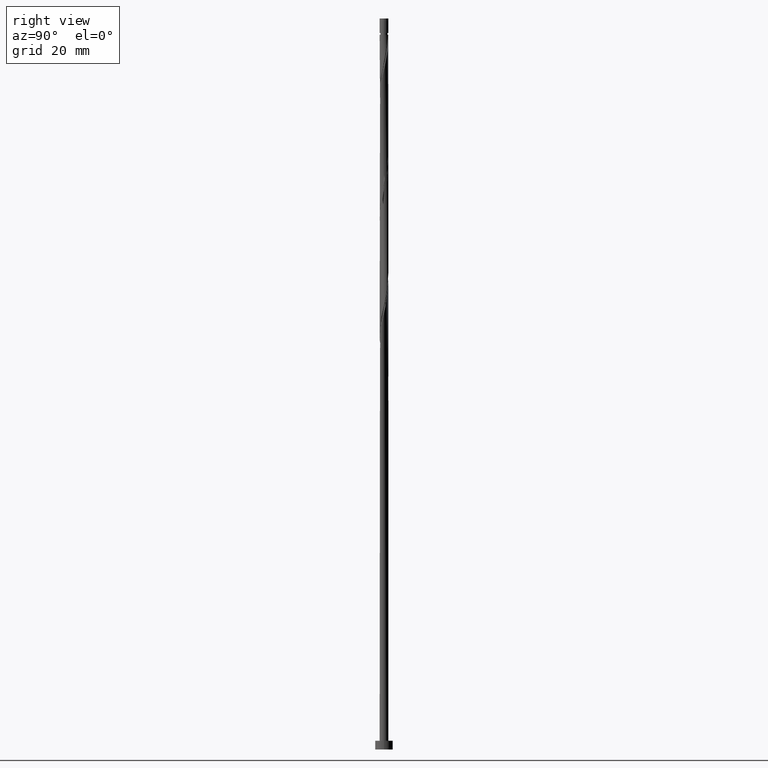
[diagram: clean part render]
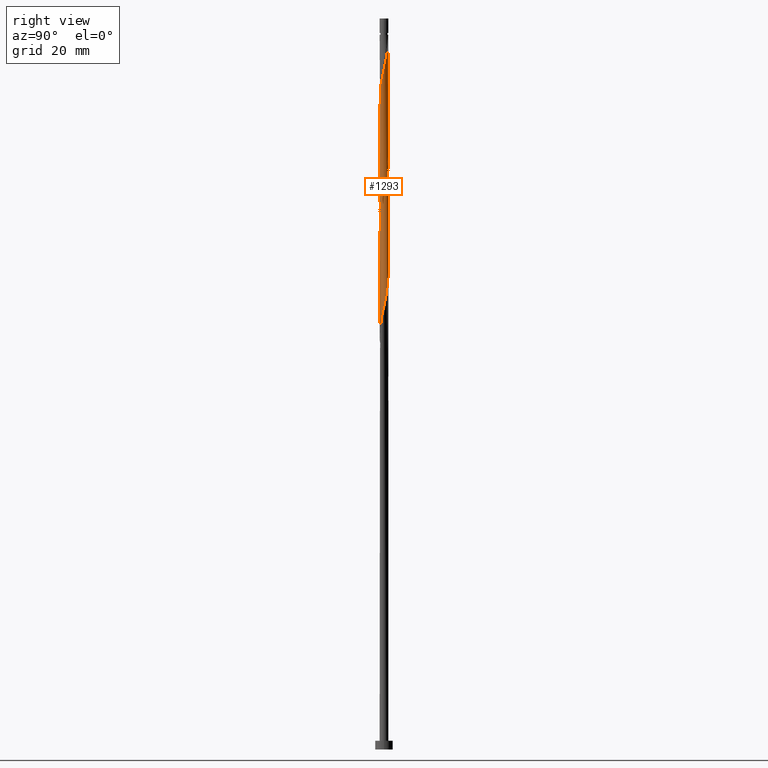
[diagram: same view with one face highlighted and labeled with its STEP entity id]
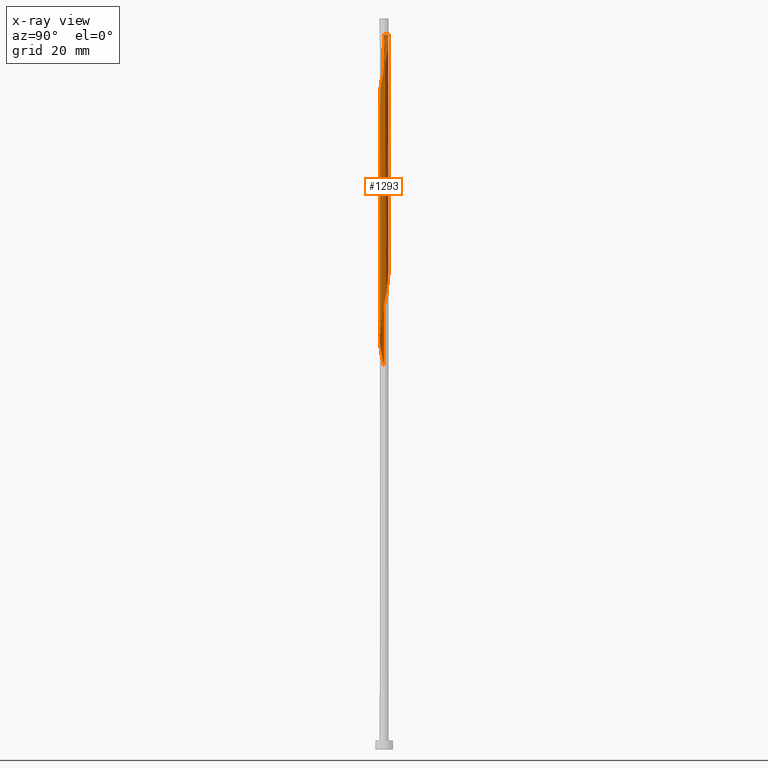
[diagram: x-ray of the same camera — body ghosted, the highlighted face saturated]
A machine part, right view. The second image highlights one B-rep face of the part: STEP entity #1293.
The next image is the same camera in x-ray: the body ghosted, the highlighted face saturated — about 0% of this face is hidden behind the body in this view.
In plain terms, the highlighted cylindrical surface (bore or boss wall) has radius 1.5 mm, axis along (-0, -0, -1).
Its self-contained STEP definition (entity closure, byte-faithful):
#2 = CARTESIAN_POINT ( 'NONE',  ( 1.198217944904827581, -0.9023711855484176647, 228.4035858823672243 ) ) ;
#12 = CARTESIAN_POINT ( 'NONE',  ( -1.040221096925479483, -1.080712759946489854, 217.1856371644184378 ) ) ;
#21 = CARTESIAN_POINT ( 'NONE',  ( 1.423302300154765998, 0.4735087775048722469, 234.8138422926236615 ) ) ;
#27 = CARTESIAN_POINT ( 'NONE',  ( -1.379351468801872205, -0.5893975954431092124, 133.8523038310850950 ) ) ;
#43 = ORIENTED_EDGE ( 'NONE', *, *, #1038, .T. ) ;
#57 = EDGE_LOOP ( 'NONE', ( #442, #43, #70, #255, #1226, #1067, #425, #1413 ) ) ;
#70 = ORIENTED_EDGE ( 'NONE', *, *, #951, .F. ) ;
#87 = CARTESIAN_POINT ( 'NONE',  ( 1.365807925316973703, -0.6463289655144691670, 190.7433294721107018 ) ) ;
#97 = CARTESIAN_POINT ( 'NONE',  ( -1.423302300154763333, 0.4735087775048729686, 170.7112781900594598 ) ) ;
#99 = CARTESIAN_POINT ( 'NONE',  ( -1.500000000000002665, -0.05965969550515165531, 212.1154759477493315 ) ) ;
#113 = CARTESIAN_POINT ( 'NONE',  ( 1.500000000000000222, -0.05965969550515079489, 193.4096445349337898 ) ) ;
#117 = CARTESIAN_POINT ( 'NONE',  ( -1.499999999999999334, 0.05965969550515983627, 214.2429778682671326 ) ) ;
#120 = CARTESIAN_POINT ( 'NONE',  ( 0.5937265303270490291, -1.389482359624426788, 185.9356371644183810 ) ) ;
#123 = CARTESIAN_POINT ( 'NONE',  ( 0.2984962311319879213, 1.469999999999999529, 202.7625602413415038 ) ) ;
#137 = CARTESIAN_POINT ( 'NONE',  ( 1.480322099070742858, -0.2421703594637400481, 231.6087140874954002 ) ) ;
#146 = CARTESIAN_POINT ( 'NONE',  ( 1.040221096925479927, 1.080712759946489854, 238.0189704977518375 ) ) ;
#155 = CARTESIAN_POINT ( 'NONE',  ( -0.4188377764137488635, -1.440338473084987303, 220.3907653695466990 ) ) ;
#161 = CARTESIAN_POINT ( 'NONE',  ( -1.499999999999999778, -1.794712623994346953E-15, 131.1738154505667637 ) ) ;
#207 = AXIS2_PLACEMENT_3D ( 'NONE', #1505, #1408, #209 ) ;
#209 = DIRECTION ( 'NONE',  ( -1.000000000000000000, 0.000000000000000000, 0.000000000000000000 ) ) ;
#215 = CARTESIAN_POINT ( 'NONE',  ( 1.040221096925477262, -1.080712759946488521, 188.3394833182645982 ) ) ;
#222 = CARTESIAN_POINT ( 'NONE',  ( -1.040221096925477262, 1.080712759946488521, 167.5061499849312270 ) ) ;
#230 = CARTESIAN_POINT ( 'NONE',  ( 1.495261789693514531, -0.1191309375542241311, 193.1471756259568906 ) ) ;
#237 = CARTESIAN_POINT ( 'NONE',  ( 1.480322099070740416, 0.2421703594637390211, 153.0830730618544067 ) ) ;
#244 = CARTESIAN_POINT ( 'NONE',  ( 1.268625654424377913, -0.8003680084413155038, 148.2753807541620574 ) ) ;
#246 = CARTESIAN_POINT ( 'NONE',  ( 1.500000000000000000, 1.203953051929541165E-15, 193.6738154505667922 ) ) ;
#255 = ORIENTED_EDGE ( 'NONE', *, *, #949, .T. ) ;
#261 = CARTESIAN_POINT ( 'NONE',  ( -1.198217944904826915, -0.9023711855484154443, 135.4548679336492114 ) ) ;
#264 = CARTESIAN_POINT ( 'NONE',  ( -0.5937265303270506944, -1.389482359624428121, 219.5894833182646266 ) ) ;
#279 = CARTESIAN_POINT ( 'NONE',  ( 0.4188377764137477532, -1.440338473084985527, 143.4676884464697366 ) ) ;
#281 = CARTESIAN_POINT ( 'NONE',  ( 0.1200059157952639288, -1.506244004368417988, 222.7946115233927742 ) ) ;
#289 = CARTESIAN_POINT ( 'NONE',  ( 1.268625654424380134, 0.8003680084413162810, 236.4164063951877210 ) ) ;
#293 = LINE ( 'NONE', #1498, #668 ) ;
#329 = VERTEX_POINT ( 'NONE', #764 ) ;
#348 = CARTESIAN_POINT ( 'NONE',  ( -1.307785643856737456, -0.7568811863455700006, 176.3202525490338246 ) ) ;
#355 = CARTESIAN_POINT ( 'NONE',  ( -0.4769865464687111367, -1.433755995631583069, 181.1279448567261170 ) ) ;
#357 = VERTEX_POINT ( 'NONE', #1656 ) ;
#361 = CARTESIAN_POINT ( 'NONE',  ( -0.4188377764137478643, 1.440338473084985527, 164.3010217798031363 ) ) ;
#368 = CARTESIAN_POINT ( 'NONE',  ( 1.198217944904827137, 0.9023711855484152222, 156.2882012669825826 ) ) ;
#377 = CARTESIAN_POINT ( 'NONE',  ( 0.8062464528369474026, 1.277943299919640285, 158.6920474208286862 ) ) ;
#380 = LINE ( 'NONE', #648, #1089 ) ;
#395 = DIRECTION ( 'NONE',  ( -0.000000000000000000, -0.000000000000000000, -1.000000000000000000 ) ) ;
#398 = CARTESIAN_POINT ( 'NONE',  ( -0.6416164996528289644, -1.355849647775611899, 138.6599961387774442 ) ) ;
#425 = ORIENTED_EDGE ( 'NONE', *, *, #1183, .T. ) ;
#438 = FACE_OUTER_BOUND ( 'NONE', #57, .T. ) ;
#442 = ORIENTED_EDGE ( 'NONE', *, *, #454, .F. ) ;
#454 = EDGE_CURVE ( 'NONE', #882, #995, #293, .T. ) ;
#491 = CARTESIAN_POINT ( 'NONE',  ( -0.1200059157952649697, -1.506244004368415768, 182.7305089592902334 ) ) ;
#493 = CARTESIAN_POINT ( 'NONE',  ( -0.5937265303270490291, 1.389482359624426566, 206.7689704977517238 ) ) ;
#498 = CARTESIAN_POINT ( 'NONE',  ( -0.5937265303270490291, 1.389482359624426566, 165.1023038310851518 ) ) ;
#506 = CARTESIAN_POINT ( 'NONE',  ( -0.9474483493949313884, -1.162902242335450698, 178.7240987028800134 ) ) ;
#509 = CARTESIAN_POINT ( 'NONE',  ( -1.171443383531782345, 0.9544070513681616186, 209.9740987028799850 ) ) ;
#516 = CARTESIAN_POINT ( 'NONE',  ( 0.06197155335259039999, -1.498719295456980127, 183.5317910105722774 ) ) ;
#524 = CARTESIAN_POINT ( 'NONE',  ( -1.509726904394475433, -0.06242671438683002061, 173.1151243439055634 ) ) ;
#537 = CARTESIAN_POINT ( 'NONE',  ( 0.2439490225004457558, -1.491194586545544487, 142.6664063951876642 ) ) ;
#539 = CARTESIAN_POINT ( 'NONE',  ( 1.171443383531785010, 0.9544070513681620627, 237.2176884464697650 ) ) ;
#546 = CARTESIAN_POINT ( 'NONE',  ( 0.8062464528369475136, -1.277943299919642950, 225.9997397285210923 ) ) ;
#551 = CARTESIAN_POINT ( 'NONE',  ( -0.2984962311319877548, -1.469999999999999529, 140.2625602413415322 ) ) ;
#554 = CARTESIAN_POINT ( 'NONE',  ( 1.365807925316976146, 0.6463289655144695001, 235.6151243439056771 ) ) ;
#564 = CIRCLE ( 'NONE', #939, 1.499999999999982681 ) ;
#594 = CARTESIAN_POINT ( 'NONE',  ( 1.500000000000000222, 1.836970198721030181E-16, 250.0000000000000000 ) ) ;
#605 = LINE ( 'NONE', #594, #1262 ) ;
#621 = CARTESIAN_POINT ( 'NONE',  ( 1.480796674992553186, -0.3006885894952764926, 192.3458935746748466 ) ) ;
#623 = DIRECTION ( 'NONE',  ( -0.000000000000000000, -0.000000000000000000, -1.000000000000000000 ) ) ;
#629 = CARTESIAN_POINT ( 'NONE',  ( -1.268625654424377913, 0.8003680084413155038, 169.1087140874953434 ) ) ;
#632 = CARTESIAN_POINT ( 'NONE',  ( -1.495261789693516530, -0.1191309375542227433, 212.3779448567261738 ) ) ;
#638 = CARTESIAN_POINT ( 'NONE',  ( -0.2984962311319877548, -1.469999999999999529, 181.9292269080081610 ) ) ;
#640 = CARTESIAN_POINT ( 'NONE',  ( 0.8062464528369474026, 1.277943299919640285, 200.3587140874953434 ) ) ;
#645 = CARTESIAN_POINT ( 'NONE',  ( 1.088650245952915485, 1.047861184751261110, 157.0894833182645982 ) ) ;
#648 = CARTESIAN_POINT ( 'NONE',  ( -1.500000000000000222, 0.000000000000000000, 250.0000000000000000 ) ) ;
#655 = CARTESIAN_POINT ( 'NONE',  ( -0.8062464528369471806, -1.277943299919640285, 179.5253807541620574 ) ) ;
#663 = CARTESIAN_POINT ( 'NONE',  ( 0.000000000000000000, 0.000000000000000000, 244.4292269080082178 ) ) ;
#668 = VECTOR ( 'NONE', #701, 1000.000000000000000 ) ;
#669 = CARTESIAN_POINT ( 'NONE',  ( 1.495261789693516530, 0.1191309375542222576, 233.2112781900595166 ) ) ;
#682 = EDGE_CURVE ( 'NONE', #995, #1098, #1066, .T. ) ;
#685 = CARTESIAN_POINT ( 'NONE',  ( 0.06197155335259257880, 1.498719295456981904, 242.8266628054441583 ) ) ;
#691 = CARTESIAN_POINT ( 'NONE',  ( 0.5937265303270506944, 1.389482359624428121, 240.4228166515979410 ) ) ;
#701 = DIRECTION ( 'NONE',  ( -0.000000000000000000, -0.000000000000000000, -1.000000000000000000 ) ) ;
#718 = DIRECTION ( 'NONE',  ( -1.000000000000000000, 0.000000000000000000, 0.000000000000000000 ) ) ;
#746 = CARTESIAN_POINT ( 'NONE',  ( -1.495261789693514087, 0.1191309375542232707, 172.3138422926235478 ) ) ;
#753 = CARTESIAN_POINT ( 'NONE',  ( -1.450917293747005399, -0.4219140045406479245, 174.7176884464697082 ) ) ;
#755 = CARTESIAN_POINT ( 'NONE',  ( -1.499999999999982681, 0.000000000000000000, 244.4292269080082178 ) ) ;
#761 = CARTESIAN_POINT ( 'NONE',  ( -0.6416164996528289644, -1.355849647775611899, 180.3266628054441014 ) ) ;
#764 = CARTESIAN_POINT ( 'NONE',  ( -0.2984962311320361605, 1.470000000000403428, 244.4292269080083031 ) ) ;
#765 = CARTESIAN_POINT ( 'NONE',  ( -0.06197155335259088571, 1.498719295456980127, 204.3651243439056486 ) ) ;
#770 = CARTESIAN_POINT ( 'NONE',  ( -0.06197155335259088571, 1.498719295456980127, 162.6984576772390199 ) ) ;
#777 = CARTESIAN_POINT ( 'NONE',  ( 1.171443383531781901, -0.9544070513681621737, 147.4740987028799282 ) ) ;
#779 = CARTESIAN_POINT ( 'NONE',  ( 0.4769865464687113032, 1.433755995631583069, 201.9612781900593461 ) ) ;
#786 = CARTESIAN_POINT ( 'NONE',  ( -1.500000000000000000, 9.945699124635338429E-16, 214.5071487839000497 ) ) ;
#789 = CARTESIAN_POINT ( 'NONE',  ( -0.8062464528369471806, -1.277943299919640285, 137.8587140874953434 ) ) ;
#793 = CARTESIAN_POINT ( 'NONE',  ( 0.2984962311319876993, -1.470000000000002416, 223.5958935746748182 ) ) ;
#801 = CARTESIAN_POINT ( 'NONE',  ( -0.2984962311320360495, 1.470000000000403428, 244.4292269080083031 ) ) ;
#809 = CARTESIAN_POINT ( 'NONE',  ( 0.6416164996528290754, -1.355849647775614786, 225.1984576772389914 ) ) ;
#815 = CARTESIAN_POINT ( 'NONE',  ( 0.2439490225004475321, 1.491194586545546708, 242.0253807541620859 ) ) ;
#845 = CARTESIAN_POINT ( 'NONE',  ( -1.500000000000002220, -4.112883096653684897E-16, 211.8513050321163291 ) ) ;
#859 = VERTEX_POINT ( 'NONE', #1185 ) ;
#871 = CARTESIAN_POINT ( 'NONE',  ( -1.198217944904826915, -0.9023711855484154443, 177.1215346003158686 ) ) ;
#881 = CARTESIAN_POINT ( 'NONE',  ( -1.500000000000002220, -4.112883096653684897E-16, 211.8513050321163291 ) ) ;
#882 = VERTEX_POINT ( 'NONE', #755 ) ;
#887 = CARTESIAN_POINT ( 'NONE',  ( 0.1200059157952646366, 1.506244004368415768, 161.8971756259568906 ) ) ;
#896 = CARTESIAN_POINT ( 'NONE',  ( 1.379351468801872205, 0.5893975954431089903, 154.6856371644184662 ) ) ;
#898 = CARTESIAN_POINT ( 'NONE',  ( 1.379351468801872205, 0.5893975954431089903, 196.3523038310851518 ) ) ;
#903 = CARTESIAN_POINT ( 'NONE',  ( 1.423302300154763333, -0.4735087775048735237, 149.8779448567261454 ) ) ;
#905 = CARTESIAN_POINT ( 'NONE',  ( -1.480796674992555850, -0.3006885894952763261, 213.1792269080081610 ) ) ;
#909 = CARTESIAN_POINT ( 'NONE',  ( 0.7513626703231104376, -1.298250414074620496, 145.0702525490338246 ) ) ;
#911 = CARTESIAN_POINT ( 'NONE',  ( 1.198217944904827137, 0.9023711855484152222, 197.9548679336492114 ) ) ;
#920 = CARTESIAN_POINT ( 'NONE',  ( -0.1200059157952680089, 1.506244004368418654, 243.6279448567261738 ) ) ;
#927 = CARTESIAN_POINT ( 'NONE',  ( 1.509726904394477653, -0.06242671438683039531, 232.4099961387774442 ) ) ;
#932 = CARTESIAN_POINT ( 'NONE',  ( 1.040221096925477262, -1.080712759946488521, 146.6728166515979694 ) ) ;
#934 = CARTESIAN_POINT ( 'NONE',  ( 0.7513626703231125470, 1.298250414074622272, 239.6215346003158402 ) ) ;
#939 = AXIS2_PLACEMENT_3D ( 'NONE', #663, #395, #718 ) ;
#944 = CARTESIAN_POINT ( 'NONE',  ( 1.307785643856739455, -0.7568811863455723321, 229.2048679336491830 ) ) ;
#949 = EDGE_CURVE ( 'NONE', #1360, #357, #380, .T. ) ;
#951 = EDGE_CURVE ( 'NONE', #1360, #329, #1309, .T. ) ;
#975 = DIRECTION ( 'NONE',  ( -0.000000000000000000, -0.000000000000000000, -1.000000000000000000 ) ) ;
#988 = CYLINDRICAL_SURFACE ( 'NONE', #207, 1.500000000000000222 ) ;
#995 = VERTEX_POINT ( 'NONE', #786 ) ;
#1015 = CARTESIAN_POINT ( 'NONE',  ( -1.365807925316973703, 0.6463289655144691670, 169.9099961387774158 ) ) ;
#1022 = CARTESIAN_POINT ( 'NONE',  ( -1.379351468801872205, -0.5893975954431092124, 175.5189704977518090 ) ) ;
#1025 = CARTESIAN_POINT ( 'NONE',  ( 0.9474483493949318325, 1.162902242335450254, 199.5574320362132994 ) ) ;
#1030 = CARTESIAN_POINT ( 'NONE',  ( 0.6416164996528299636, 1.355849647775611677, 159.4933294721107586 ) ) ;
#1032 = CARTESIAN_POINT ( 'NONE',  ( 1.307785643856737456, 0.7568811863455692235, 197.1535858823671674 ) ) ;
#1038 = EDGE_CURVE ( 'NONE', #882, #329, #564, .T. ) ;
#1040 = CARTESIAN_POINT ( 'NONE',  ( 1.495261789693514531, -0.1191309375542241311, 151.4805089592902902 ) ) ;
#1042 = CARTESIAN_POINT ( 'NONE',  ( -1.423302300154763333, 0.4735087775048729686, 212.3779448567261738 ) ) ;
#1045 = CARTESIAN_POINT ( 'NONE',  ( -1.480322099070740416, -0.2421703594637387436, 132.2497397285210354 ) ) ;
#1053 = CARTESIAN_POINT ( 'NONE',  ( -0.4769865464687111367, -1.433755995631583069, 139.4612781900594314 ) ) ;
#1060 = CARTESIAN_POINT ( 'NONE',  ( -1.088650245952915263, -1.047861184751261110, 136.2561499849312554 ) ) ;
#1063 = CARTESIAN_POINT ( 'NONE',  ( 0.9089988103191743996, 1.207018468524815757, 238.8202525490338246 ) ) ;
#1066 =( BOUNDED_CURVE ( )  B_SPLINE_CURVE ( 2, ( #1156, #117, #1710, #1697, #1042, #1682, #1171, #509, #1689, #1451, #1307, #493, #1178, #1704, #765, #1578, #123, #779, #1291, #640, #1025, #1162, #911, #1032, #898, #1569, #1428, #1299, #246 ),
 .UNSPECIFIED., .F., .T. ) 
 B_SPLINE_CURVE_WITH_KNOTS ( ( 3, 2, 2, 2, 2, 2, 2, 2, 2, 2, 2, 2, 2, 2, 3 ),
 ( 0.4295271625973836049, 0.4326923076923077094, 0.4423076923076922906, 0.4519230769230769273, 0.4615384615384615641, 0.4711538461538461453, 0.4807692307692307820, 0.4903846153846153633, 0.5000000000000000000, 0.5096153846153845812, 0.5192307692307692735, 0.5288461538461538547, 0.5384615384615384359, 0.5480769230769231282, 0.5545271625973831053 ),
 .UNSPECIFIED. ) 
 CURVE ( )  GEOMETRIC_REPRESENTATION_ITEM ( )  RATIONAL_B_SPLINE_CURVE ( ( 0.9061636035683111601, 0.9069090390690999204, 0.9090909090909563561, 0.9024626128164596750, 0.9090909090909563561, 0.9024626128164596750, 0.9090909090909563561, 0.9024626128164596750, 0.9090909090909563561, 0.9024626128164596750, 0.9090909090909563561, 0.9024626128164596750, 0.9090909090909563561, 0.9024626128164596750, 0.9090909090909563561, 0.9024626128164596750, 0.9090909090909563561, 0.9024626128164596750, 0.9090909090909563561, 0.9024626128164596750, 0.9090909090909563561, 0.9024626128164596750, 0.9090909090909563561, 0.9024626128164596750, 0.9090909090909563561, 0.9024626128164596750, 0.9090909090909563561, 0.9046444828383164438, 0.9061636035683110491 ) ) 
 REPRESENTATION_ITEM ( '' )  );
#1067 = ORIENTED_EDGE ( 'NONE', *, *, #1183, .F. ) ;
#1070 = CARTESIAN_POINT ( 'NONE',  ( 0.9089988103191715130, -1.207018468524815535, 145.8715346003158402 ) ) ;
#1082 = CARTESIAN_POINT ( 'NONE',  ( -0.06197155335259172532, -1.498719295456981904, 221.9933294721108155 ) ) ;
#1089 = VECTOR ( 'NONE', #623, 1000.000000000000000 ) ;
#1092 = CARTESIAN_POINT ( 'NONE',  ( -0.9089988103191739555, -1.207018468524816424, 217.9869192157005102 ) ) ;
#1098 = VERTEX_POINT ( 'NONE', #1672 ) ;
#1153 = CARTESIAN_POINT ( 'NONE',  ( 0.4188377764137477532, -1.440338473084985527, 185.1343551131363938 ) ) ;
#1156 = CARTESIAN_POINT ( 'NONE',  ( -1.500000000000000000, 9.945699124635338429E-16, 214.5071487839000497 ) ) ;
#1160 = CARTESIAN_POINT ( 'NONE',  ( -0.9089988103191720681, 1.207018468524815313, 166.7048679336491830 ) ) ;
#1162 = CARTESIAN_POINT ( 'NONE',  ( 1.088650245952915485, 1.047861184751261110, 198.7561499849312270 ) ) ;
#1168 = CARTESIAN_POINT ( 'NONE',  ( -0.2439490225004463386, 1.491194586545544043, 163.4997397285210354 ) ) ;
#1171 = CARTESIAN_POINT ( 'NONE',  ( -1.268625654424377913, 0.8003680084413155038, 210.7753807541620859 ) ) ;
#1175 = CARTESIAN_POINT ( 'NONE',  ( 1.509726904394475433, 0.06242671438682949325, 152.2817910105722206 ) ) ;
#1178 = CARTESIAN_POINT ( 'NONE',  ( -0.4188377764137478643, 1.440338473084985527, 205.9676884464697082 ) ) ;
#1182 = CARTESIAN_POINT ( 'NONE',  ( -1.088650245952915263, -1.047861184751261110, 177.9228166515978842 ) ) ;
#1183 = EDGE_CURVE ( 'NONE', #859, #1098, #605, .T. ) ;
#1185 = CARTESIAN_POINT ( 'NONE',  ( 1.500000000000000222, 1.836970198721030181E-16, 244.4292269080083031 ) ) ;
#1191 = CARTESIAN_POINT ( 'NONE',  ( 1.450917293747007619, -0.4219140045406496453, 230.8074320362133278 ) ) ;
#1198 = CARTESIAN_POINT ( 'NONE',  ( 1.379351468801873315, -0.5893975954431104336, 230.0061499849312838 ) ) ;
#1208 = CARTESIAN_POINT ( 'NONE',  ( 1.480796674992555850, 0.3006885894952761595, 234.0125602413415038 ) ) ;
#1216 = CARTESIAN_POINT ( 'NONE',  ( 0.4769865464687106371, -1.433755995631585511, 224.3971756259569190 ) ) ;
#1222 = CARTESIAN_POINT ( 'NONE',  ( 0.4188377764137496961, 1.440338473084987303, 241.2240987028800419 ) ) ;
#1226 = ORIENTED_EDGE ( 'NONE', *, *, #1550, .F. ) ;
#1251 =( BOUNDED_CURVE ( )  B_SPLINE_CURVE ( 2, ( #1552, #113, #230, #621, #1425, #87, #1417, #1288, #215, #1559, #1545, #120, #1153, #1680, #516, #491, #638, #355, #761, #655, #506, #1182, #871, #348, #1022, #753, #1708, #524, #746, #1281, #97, #1015, #629, #1701, #222, #1160, #1687, #498, #361, #1168, #770, #887, #1695, #1434, #1030, #377, #1566, #645, #368, #1313, #896, #1304, #237, #1175, #1040, #1576, #903, #1449, #244, #777, #932, #1070, #909, #1477, #279, #537, #1346, #1617, #551, #1053, #398, #789, #1583, #1060, #261, #1353, #27, #1454, #1045, #1327, #161 ),
 .UNSPECIFIED., .F., .T. ) 
 B_SPLINE_CURVE_WITH_KNOTS ( ( 3, 2, 2, 2, 2, 2, 2, 2, 2, 2, 2, 2, 2, 2, 2, 2, 2, 2, 2, 2, 2, 2, 2, 2, 2, 2, 2, 2, 2, 2, 2, 2, 2, 2, 2, 2, 2, 2, 2, 2, 3 ),
 ( 0.5545271625973831053, 0.5576923076923077094, 0.5673076923076922906, 0.5769230769230768718, 0.5865384615384615641, 0.5961538461538461453, 0.6057692307692307265, 0.6153846153846154188, 0.6250000000000000000, 0.6346153846153845812, 0.6442307692307692735, 0.6538461538461538547, 0.6634615384615384359, 0.6730769230769231282, 0.6826923076923077094, 0.6923076923076922906, 0.7019230769230768718, 0.7115384615384615641, 0.7211538461538461453, 0.7307692307692307265, 0.7403846153846154188, 0.7500000000000000000, 0.7596153846153845812, 0.7692307692307692735, 0.7788461538461538547, 0.7884615384615384359, 0.7980769230769231282, 0.8076923076923077094, 0.8173076923076922906, 0.8269230769230768718, 0.8365384615384615641, 0.8461538461538461453, 0.8557692307692307265, 0.8653846153846154188, 0.8750000000000000000, 0.8846153846153845812, 0.8942307692307692735, 0.9038461538461538547, 0.9134615384615384359, 0.9230769230769231282, 0.9295271625973829943 ),
 .UNSPECIFIED. ) 
 CURVE ( )  GEOMETRIC_REPRESENTATION_ITEM ( )  RATIONAL_B_SPLINE_CURVE ( ( 0.9061636035683110491, 0.9069090390690996983, 0.9090909090909563561, 0.9024626128164596750, 0.9090909090909563561, 0.9024626128164596750, 0.9090909090909563561, 0.9024626128164596750, 0.9090909090909563561, 0.9024626128164596750, 0.9090909090909563561, 0.9024626128164596750, 0.9090909090909563561, 0.9024626128164596750, 0.9090909090909563561, 0.9024626128164596750, 0.9090909090909563561, 0.9024626128164596750, 0.9090909090909563561, 0.9024626128164596750, 0.9090909090909563561, 0.9024626128164596750, 0.9090909090909563561, 0.9024626128164596750, 0.9090909090909563561, 0.9024626128164596750, 0.9090909090909563561, 0.9024626128164596750, 0.9090909090909563561, 0.9024626128164596750, 0.9090909090909563561, 0.9024626128164596750, 0.9090909090909563561, 0.9024626128164596750, 0.9090909090909563561, 0.9024626128164596750, 0.9090909090909563561, 0.9024626128164596750, 0.9090909090909563561, 0.9024626128164596750, 0.9090909090909563561, 0.9024626128164596750, 0.9090909090909563561, 0.9024626128164596750, 0.9090909090909563561, 0.9024626128164596750, 0.9090909090909563561, 0.9024626128164596750, 0.9090909090909563561, 0.9024626128164596750, 0.9090909090909563561, 0.9024626128164596750, 0.9090909090909563561, 0.9024626128164596750, 0.9090909090909563561, 0.9024626128164596750, 0.9090909090909563561, 0.9024626128164596750, 0.9090909090909563561, 0.9024626128164596750, 0.9090909090909563561, 0.9024626128164596750, 0.9090909090909563561, 0.9024626128164596750, 0.9090909090909563561, 0.9024626128164596750, 0.9090909090909563561, 0.9024626128164596750, 0.9090909090909563561, 0.9024626128164596750, 0.9090909090909563561, 0.9024626128164596750, 0.9090909090909563561, 0.9024626128164596750, 0.9090909090909563561, 0.9024626128164596750, 0.9090909090909563561, 0.9024626128164596750, 0.9090909090909563561, 0.9046444828383165548, 0.9061636035683109380 ) ) 
 REPRESENTATION_ITEM ( '' )  );
#1262 = VECTOR ( 'NONE', #975, 1000.000000000000000 ) ;
#1281 = CARTESIAN_POINT ( 'NONE',  ( -1.480796674992553186, 0.3006885894952762706, 171.5125602413415606 ) ) ;
#1288 = CARTESIAN_POINT ( 'NONE',  ( 1.171443383531781901, -0.9544070513681621737, 189.1407653695466422 ) ) ;
#1291 = CARTESIAN_POINT ( 'NONE',  ( 0.6416164996528299636, 1.355849647775611677, 201.1599961387774158 ) ) ;
#1293 = ADVANCED_FACE ( 'NONE', ( #438 ), #988, .T. ) ;
#1299 = CARTESIAN_POINT ( 'NONE',  ( 1.499999999999999334, 0.1218846578055703817, 194.2135161879151042 ) ) ;
#1304 = CARTESIAN_POINT ( 'NONE',  ( 1.450917293747005621, 0.4219140045406470918, 153.8843551131364222 ) ) ;
#1307 = CARTESIAN_POINT ( 'NONE',  ( -0.7513626703231105486, 1.298250414074620496, 207.5702525490338530 ) ) ;
#1309 =( BOUNDED_CURVE ( )  B_SPLINE_CURVE ( 2, ( #881, #99, #632, #905, #1487, #1463, #1608, #1329, #12, #1092, #1480, #264, #155, #1339, #1082, #281, #793, #1216, #809, #546, #1600, #1626, #2, #944, #1198, #1191, #137, #927, #669, #1208, #21, #554, #289, #539, #146, #1063, #934, #691, #1222, #815, #685, #920, #801 ),
 .UNSPECIFIED., .F., .T. ) 
 B_SPLINE_CURVE_WITH_KNOTS ( ( 3, 2, 2, 2, 2, 2, 2, 2, 2, 2, 2, 2, 2, 2, 2, 2, 2, 2, 2, 2, 2, 3 ),
 ( 0.5545271625973832164, 0.5576923076923077094, 0.5673076923076922906, 0.5769230769230768718, 0.5865384615384615641, 0.5961538461538461453, 0.6057692307692309486, 0.6153846153846155298, 0.6250000000000001110, 0.6346153846153846922, 0.6442307692307692735, 0.6538461538461539657, 0.6634615384615385469, 0.6730769230769232392, 0.6826923076923078204, 0.6923076923076925127, 0.7019230769230770939, 0.7115384615384616751, 0.7211538461538463674, 0.7307692307692310596, 0.7403846153846156408, 0.7500000000000002220 ),
 .UNSPECIFIED. ) 
 CURVE ( )  GEOMETRIC_REPRESENTATION_ITEM ( )  RATIONAL_B_SPLINE_CURVE ( ( 0.9061636035683167112, 0.9069090390691052495, 0.9090909090909620183, 0.9024626128164653371, 0.9090909090909620183, 0.9024626128164653371, 0.9090909090909620183, 0.9024626128164653371, 0.9090909090909620183, 0.9024626128164653371, 0.9090909090909620183, 0.9024626128164653371, 0.9090909090909620183, 0.9024626128164653371, 0.9090909090909620183, 0.9024626128164653371, 0.9090909090909620183, 0.9024626128164653371, 0.9090909090909620183, 0.9024626128164653371, 0.9090909090909620183, 0.9024626128164653371, 0.9090909090909620183, 0.9024626128164653371, 0.9090909090909620183, 0.9024626128164653371, 0.9090909090909620183, 0.9024626128164653371, 0.9090909090909620183, 0.9024626128164653371, 0.9090909090909620183, 0.9024626128164653371, 0.9090909090909620183, 0.9024626128164653371, 0.9090909090909620183, 0.9024626128164653371, 0.9090909090909620183, 0.9024626128164653371, 0.9090909090909620183, 0.9024626128164653371, 0.9090909090909620183, 0.9024626128164652261, 0.9090909090909621293 ) ) 
 REPRESENTATION_ITEM ( '' )  );
#1313 = CARTESIAN_POINT ( 'NONE',  ( 1.307785643856737456, 0.7568811863455692235, 155.4869192157004534 ) ) ;
#1327 = CARTESIAN_POINT ( 'NONE',  ( -1.499999999999998890, -0.1218846578055727131, 131.7135161879151042 ) ) ;
#1329 = CARTESIAN_POINT ( 'NONE',  ( -1.171443383531784788, -0.9544070513681625068, 216.3843551131363938 ) ) ;
#1339 = CARTESIAN_POINT ( 'NONE',  ( -0.2439490225004473933, -1.491194586545546708, 221.1920474208287146 ) ) ;
#1346 = CARTESIAN_POINT ( 'NONE',  ( 0.06197155335259039999, -1.498719295456980127, 141.8651243439056771 ) ) ;
#1353 = CARTESIAN_POINT ( 'NONE',  ( -1.307785643856737456, -0.7568811863455700006, 134.6535858823671390 ) ) ;
#1360 = VERTEX_POINT ( 'NONE', #845 ) ;
#1408 = DIRECTION ( 'NONE',  ( -0.000000000000000000, -0.000000000000000000, -1.000000000000000000 ) ) ;
#1413 = ORIENTED_EDGE ( 'NONE', *, *, #682, .F. ) ;
#1417 = CARTESIAN_POINT ( 'NONE',  ( 1.268625654424377913, -0.8003680084413155038, 189.9420474208287430 ) ) ;
#1425 = CARTESIAN_POINT ( 'NONE',  ( 1.423302300154763333, -0.4735087775048735237, 191.5446115233928026 ) ) ;
#1428 = CARTESIAN_POINT ( 'NONE',  ( 1.480322099070740416, 0.2421703594637390211, 194.7497397285210354 ) ) ;
#1434 = CARTESIAN_POINT ( 'NONE',  ( 0.4769865464687113032, 1.433755995631583069, 160.2946115233928026 ) ) ;
#1449 = CARTESIAN_POINT ( 'NONE',  ( 1.365807925316973703, -0.6463289655144691670, 149.0766628054441014 ) ) ;
#1451 = CARTESIAN_POINT ( 'NONE',  ( -0.9089988103191720681, 1.207018468524815313, 208.3715346003158686 ) ) ;
#1454 = CARTESIAN_POINT ( 'NONE',  ( -1.450917293747005399, -0.4219140045406479245, 133.0510217798030510 ) ) ;
#1463 = CARTESIAN_POINT ( 'NONE',  ( -1.365807925316976146, -0.6463289655144700552, 214.7817910105723342 ) ) ;
#1477 = CARTESIAN_POINT ( 'NONE',  ( 0.5937265303270490291, -1.389482359624426788, 144.2689704977518090 ) ) ;
#1480 = CARTESIAN_POINT ( 'NONE',  ( -0.7513626703231123249, -1.298250414074622494, 218.7882012669825542 ) ) ;
#1487 = CARTESIAN_POINT ( 'NONE',  ( -1.423302300154765776, -0.4735087775048729131, 213.9805089592902618 ) ) ;
#1498 = CARTESIAN_POINT ( 'NONE',  ( -1.500000000000000222, 0.000000000000000000, 250.0000000000000000 ) ) ;
#1505 = CARTESIAN_POINT ( 'NONE',  ( 0.000000000000000000, 0.000000000000000000, 250.0000000000000000 ) ) ;
#1545 = CARTESIAN_POINT ( 'NONE',  ( 0.7513626703231104376, -1.298250414074620496, 186.7369192157005102 ) ) ;
#1550 = EDGE_CURVE ( 'NONE', #1098, #357, #1251, .T. ) ;
#1552 = CARTESIAN_POINT ( 'NONE',  ( 1.500000000000000000, 1.203953051929541165E-15, 193.6738154505667922 ) ) ;
#1559 = CARTESIAN_POINT ( 'NONE',  ( 0.9089988103191715130, -1.207018468524815535, 187.5382012669824974 ) ) ;
#1566 = CARTESIAN_POINT ( 'NONE',  ( 0.9474483493949318325, 1.162902242335450254, 157.8907653695466990 ) ) ;
#1569 = CARTESIAN_POINT ( 'NONE',  ( 1.450917293747005621, 0.4219140045406470918, 195.5510217798030794 ) ) ;
#1576 = CARTESIAN_POINT ( 'NONE',  ( 1.480796674992553186, -0.3006885894952764926, 150.6792269080081894 ) ) ;
#1578 = CARTESIAN_POINT ( 'NONE',  ( 0.1200059157952646366, 1.506244004368415768, 203.5638422926235478 ) ) ;
#1583 = CARTESIAN_POINT ( 'NONE',  ( -0.9474483493949313884, -1.162902242335450698, 137.0574320362133278 ) ) ;
#1600 = CARTESIAN_POINT ( 'NONE',  ( 0.9474483493949322765, -1.162902242335452918, 226.8010217798031078 ) ) ;
#1608 = CARTESIAN_POINT ( 'NONE',  ( -1.268625654424380134, -0.8003680084413161699, 215.5830730618543498 ) ) ;
#1617 = CARTESIAN_POINT ( 'NONE',  ( -0.1200059157952649697, -1.506244004368415768, 141.0638422926235478 ) ) ;
#1626 = CARTESIAN_POINT ( 'NONE',  ( 1.088650245952916595, -1.047861184751263552, 227.6023038310851803 ) ) ;
#1656 = CARTESIAN_POINT ( 'NONE',  ( -1.499999999999999778, -1.794712623994346953E-15, 131.1738154505667637 ) ) ;
#1672 = CARTESIAN_POINT ( 'NONE',  ( 1.500000000000000000, 1.203953051929541165E-15, 193.6738154505667922 ) ) ;
#1680 = CARTESIAN_POINT ( 'NONE',  ( 0.2439490225004457558, -1.491194586545544487, 184.3330730618543782 ) ) ;
#1682 = CARTESIAN_POINT ( 'NONE',  ( -1.365807925316973703, 0.6463289655144691670, 211.5766628054441014 ) ) ;
#1687 = CARTESIAN_POINT ( 'NONE',  ( -0.7513626703231105486, 1.298250414074620496, 165.9035858823671958 ) ) ;
#1689 = CARTESIAN_POINT ( 'NONE',  ( -1.040221096925477262, 1.080712759946488521, 209.1728166515979410 ) ) ;
#1695 = CARTESIAN_POINT ( 'NONE',  ( 0.2984962311319879213, 1.469999999999999529, 161.0958935746748466 ) ) ;
#1697 = CARTESIAN_POINT ( 'NONE',  ( -1.480796674992553186, 0.3006885894952762706, 213.1792269080081326 ) ) ;
#1701 = CARTESIAN_POINT ( 'NONE',  ( -1.171443383531782345, 0.9544070513681616186, 168.3074320362133278 ) ) ;
#1704 = CARTESIAN_POINT ( 'NONE',  ( -0.2439490225004463386, 1.491194586545544043, 205.1664063951876642 ) ) ;
#1708 = CARTESIAN_POINT ( 'NONE',  ( -1.480322099070740416, -0.2421703594637387436, 173.9164063951876926 ) ) ;
#1710 = CARTESIAN_POINT ( 'NONE',  ( -1.495261789693514087, 0.1191309375542232707, 213.9805089592902334 ) ) ;